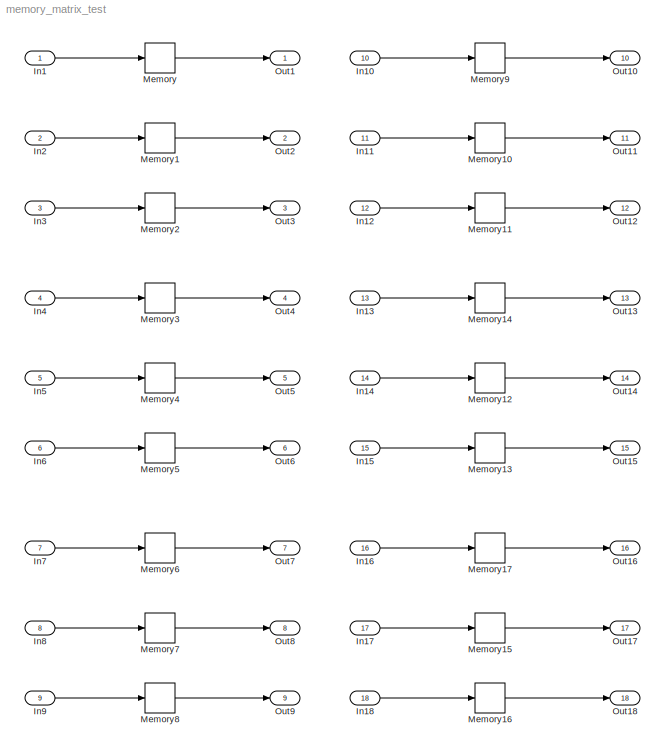
MODEL memory_matrix_test
KIND model
BLOCK [Inport] In1
  IconDisplay = Port number
  OutDataTypeStr = double
  PortDimensions = [2 3]
  SID = 1
BLOCK [Inport] In10
  IconDisplay = Port number
  OutDataTypeStr = double
  Port = 10
  PortDimensions = [2 3]
  SID = 10
BLOCK [Inport] In11
  IconDisplay = Port number
  OutDataTypeStr = double
  Port = 11
  PortDimensions = [2 3]
  SID = 11
BLOCK [Inport] In12
  IconDisplay = Port number
  Port = 12
  PortDimensions = [2 3]
  SID = 12
BLOCK [Inport] In13
  IconDisplay = Port number
  OutDataTypeStr = int8
  Port = 13
  PortDimensions = [2 3]
  SID = 13
BLOCK [Inport] In14
  IconDisplay = Port number
  OutDataTypeStr = int8
  Port = 14
  PortDimensions = [2 3]
  SID = 14
BLOCK [Inport] In15
  IconDisplay = Port number
  OutDataTypeStr = int8
  Port = 15
  PortDimensions = [2 3]
  SID = 15
BLOCK [Inport] In16
  IconDisplay = Port number
  OutDataTypeStr = boolean
  Port = 16
  PortDimensions = [2 3]
  SID = 16
BLOCK [Inport] In17
  IconDisplay = Port number
  OutDataTypeStr = boolean
  Port = 17
  PortDimensions = [2 3]
  SID = 17
BLOCK [Inport] In18
  IconDisplay = Port number
  OutDataTypeStr = boolean
  Port = 18
  PortDimensions = [2 3]
  SID = 18
BLOCK [Inport] In2
  IconDisplay = Port number
  OutDataTypeStr = double
  Port = 2
  PortDimensions = [2 3]
  SID = 2
BLOCK [Inport] In3
  IconDisplay = Port number
  Port = 3
  PortDimensions = [2 3]
  SID = 3
BLOCK [Inport] In4
  IconDisplay = Port number
  OutDataTypeStr = int8
  Port = 4
  PortDimensions = [2 3]
  SID = 4
BLOCK [Inport] In5
  IconDisplay = Port number
  OutDataTypeStr = int8
  Port = 5
  PortDimensions = [2 3]
  SID = 5
BLOCK [Inport] In6
  IconDisplay = Port number
  OutDataTypeStr = int8
  Port = 6
  PortDimensions = [2 3]
  SID = 6
BLOCK [Inport] In7
  IconDisplay = Port number
  OutDataTypeStr = boolean
  Port = 7
  PortDimensions = [2 3]
  SID = 7
BLOCK [Inport] In8
  IconDisplay = Port number
  OutDataTypeStr = boolean
  Port = 8
  PortDimensions = [2 3]
  SID = 8
BLOCK [Inport] In9
  IconDisplay = Port number
  OutDataTypeStr = boolean
  Port = 9
  PortDimensions = [2 3]
  SID = 9
BLOCK [Memory] Memory
  SID = 55
BLOCK [Memory] Memory1
  InitialCondition = 0.0
  SID = 56
BLOCK [Memory] Memory10
  InitialCondition = [0 2 3;4 5 6]
  SID = 65
BLOCK [Memory] Memory11
  InitialCondition = [true false true; false false false]
  SID = 66
BLOCK [Memory] Memory12
  InitialCondition = [0 2 3;4 5 6]
  SID = 67
BLOCK [Memory] Memory13
  InitialCondition = [true false true; false false false]
  SID = 68
BLOCK [Memory] Memory14
  InitialCondition = [0 2 3;4 5 6]
  SID = 69
BLOCK [Memory] Memory15
  InitialCondition = [0 2 3;4 5 6]
  SID = 70
BLOCK [Memory] Memory16
  InitialCondition = [true false true; false false false]
  SID = 71
BLOCK [Memory] Memory17
  InitialCondition = [0 2 3;4 5 6]
  SID = 72
BLOCK [Memory] Memory2
  InitialCondition = true
  SID = 57
BLOCK [Memory] Memory3
  SID = 58
BLOCK [Memory] Memory4
  InitialCondition = 0.0
  SID = 59
BLOCK [Memory] Memory5
  InitialCondition = true
  SID = 60
BLOCK [Memory] Memory6
  SID = 61
BLOCK [Memory] Memory7
  InitialCondition = 0.0
  SID = 62
BLOCK [Memory] Memory8
  InitialCondition = true
  SID = 63
BLOCK [Memory] Memory9
  InitialCondition = [0 2 3;4 5 6]
  SID = 64
BLOCK [Outport] Out1
  IconDisplay = Port number
  SID = 37
BLOCK [Outport] Out10
  IconDisplay = Port number
  Port = 10
  SID = 46
BLOCK [Outport] Out11
  IconDisplay = Port number
  Port = 11
  SID = 47
BLOCK [Outport] Out12
  IconDisplay = Port number
  Port = 12
  SID = 48
BLOCK [Outport] Out13
  IconDisplay = Port number
  Port = 13
  SID = 49
BLOCK [Outport] Out14
  IconDisplay = Port number
  Port = 14
  SID = 50
BLOCK [Outport] Out15
  IconDisplay = Port number
  Port = 15
  SID = 51
BLOCK [Outport] Out16
  IconDisplay = Port number
  Port = 16
  SID = 52
BLOCK [Outport] Out17
  IconDisplay = Port number
  Port = 17
  SID = 53
BLOCK [Outport] Out18
  IconDisplay = Port number
  Port = 18
  SID = 54
BLOCK [Outport] Out2
  IconDisplay = Port number
  Port = 2
  SID = 38
BLOCK [Outport] Out3
  IconDisplay = Port number
  Port = 3
  SID = 39
BLOCK [Outport] Out4
  IconDisplay = Port number
  Port = 4
  SID = 40
BLOCK [Outport] Out5
  IconDisplay = Port number
  Port = 5
  SID = 41
BLOCK [Outport] Out6
  IconDisplay = Port number
  Port = 6
  SID = 42
BLOCK [Outport] Out7
  IconDisplay = Port number
  Port = 7
  SID = 43
BLOCK [Outport] Out8
  IconDisplay = Port number
  Port = 8
  SID = 44
BLOCK [Outport] Out9
  IconDisplay = Port number
  Port = 9
  SID = 45
LINE In10:1 -> Memory9:1
LINE In11:1 -> Memory10:1
LINE In12:1 -> Memory11:1
LINE In13:1 -> Memory14:1
LINE In14:1 -> Memory12:1
LINE In15:1 -> Memory13:1
LINE In16:1 -> Memory17:1
LINE In17:1 -> Memory15:1
LINE In18:1 -> Memory16:1
LINE In1:1 -> Memory:1
LINE In2:1 -> Memory1:1
LINE In3:1 -> Memory2:1
LINE In4:1 -> Memory3:1
LINE In5:1 -> Memory4:1
LINE In6:1 -> Memory5:1
LINE In7:1 -> Memory6:1
LINE In8:1 -> Memory7:1
LINE In9:1 -> Memory8:1
LINE Memory10:1 -> Out11:1
LINE Memory11:1 -> Out12:1
LINE Memory12:1 -> Out14:1
LINE Memory13:1 -> Out15:1
LINE Memory14:1 -> Out13:1
LINE Memory15:1 -> Out17:1
LINE Memory16:1 -> Out18:1
LINE Memory17:1 -> Out16:1
LINE Memory1:1 -> Out2:1
LINE Memory2:1 -> Out3:1
LINE Memory3:1 -> Out4:1
LINE Memory4:1 -> Out5:1
LINE Memory5:1 -> Out6:1
LINE Memory6:1 -> Out7:1
LINE Memory7:1 -> Out8:1
LINE Memory8:1 -> Out9:1
LINE Memory9:1 -> Out10:1
LINE Memory:1 -> Out1:1
